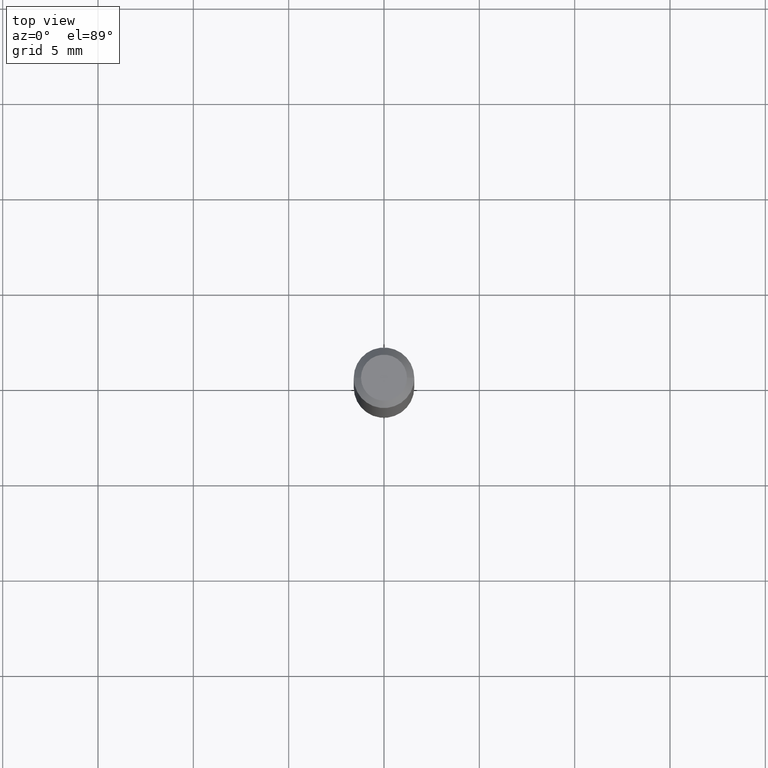
[diagram: clean part render]
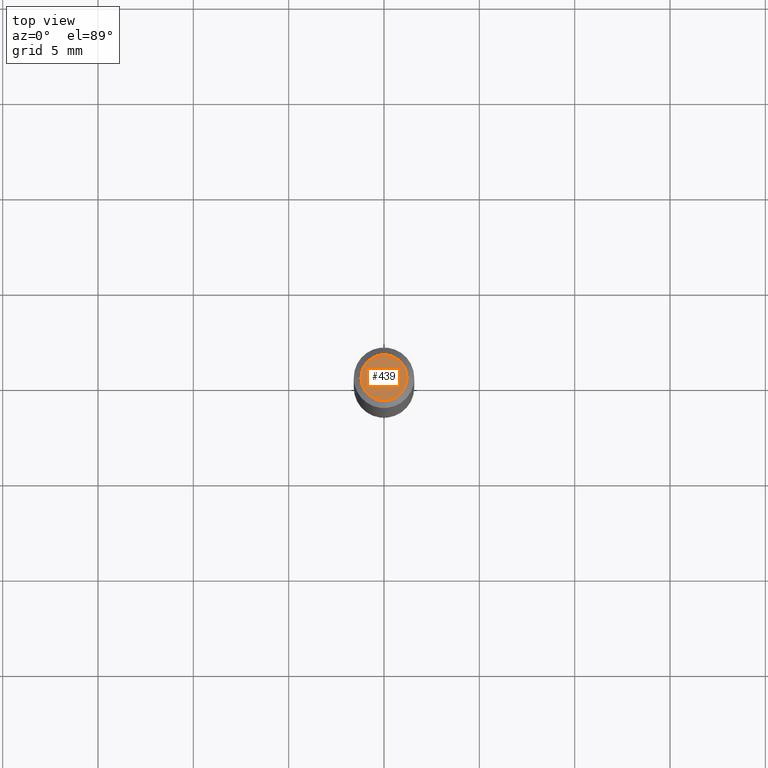
[diagram: same view with one face highlighted and labeled with its STEP entity id]
A machine part, top view. The second image highlights one B-rep face of the part: STEP entity #439.
In plain terms, the highlighted planar face has unit normal (0, -0, -1).
Its self-contained STEP definition (entity closure, byte-faithful):
#48 = CARTESIAN_POINT ( 'NONE',  ( -6.680649051745406845E-45, 9.538196290434862081E-31, 2.731847993664263218E-16 ) ) ;
#58 = EDGE_CURVE ( 'NONE', #363, #471, #509, .T. ) ;
#66 = DIRECTION ( 'NONE',  ( 1.000000000000000000, -6.982962677686266711E-15, 4.852736867747365086E-29 ) ) ;
#69 = DIRECTION ( 'NONE',  ( 1.000000000000000000, -6.982962677686266711E-15, 4.852736867747365086E-29 ) ) ;
#104 = AXIS2_PLACEMENT_3D ( 'NONE', #428, #482, #69 ) ;
#118 = CIRCLE ( 'NONE', #104, 0.04750000000000000749 ) ;
#152 = ORIENTED_EDGE ( 'NONE', *, *, #58, .T. ) ;
#157 = CARTESIAN_POINT ( 'NONE',  ( -0.04750000000000000749, 3.578768372314221353E-16, 2.731847993664239060E-16 ) ) ;
#171 = EDGE_CURVE ( 'NONE', #471, #363, #118, .T. ) ;
#252 = FACE_OUTER_BOUND ( 'NONE', #495, .T. ) ;
#296 = CARTESIAN_POINT ( 'NONE',  ( 3.316907271900976589E-16, 0.04750000000000000749, -2.925296391183627249E-17 ) ) ;
#307 = AXIS2_PLACEMENT_3D ( 'NONE', #48, #370, #66 ) ;
#331 = DIRECTION ( 'NONE',  ( -1.000000000000000000, 6.982962677686265922E-15, -4.876176775795935793E-29 ) ) ;
#332 = CARTESIAN_POINT ( 'NONE',  ( 0.04750000000000000749, -4.035134999187568762E-16, 2.731847993664288856E-16 ) ) ;
#351 = AXIS2_PLACEMENT_3D ( 'NONE', #296, #374, #331 ) ;
#357 = ORIENTED_EDGE ( 'NONE', *, *, #171, .T. ) ;
#363 = VERTEX_POINT ( 'NONE', #157 ) ;
#370 = DIRECTION ( 'NONE',  ( -2.445468806185136597E-29, 3.491481338843145583E-15, 1.000000000000000000 ) ) ;
#374 = DIRECTION ( 'NONE',  ( 2.438088387897960049E-29, -3.491481338843145188E-15, -1.000000000000000000 ) ) ;
#407 = PLANE ( 'NONE',  #351 ) ;
#428 = CARTESIAN_POINT ( 'NONE',  ( -6.680649051745406845E-45, 9.538196290434862081E-31, 2.731847993664263218E-16 ) ) ;
#439 = ADVANCED_FACE ( 'NONE', ( #252 ), #407, .F. ) ;
#471 = VERTEX_POINT ( 'NONE', #332 ) ;
#482 = DIRECTION ( 'NONE',  ( -2.445468806185136597E-29, 3.491481338843145583E-15, 1.000000000000000000 ) ) ;
#495 = EDGE_LOOP ( 'NONE', ( #152, #357 ) ) ;
#509 = CIRCLE ( 'NONE', #307, 0.04750000000000000749 ) ;